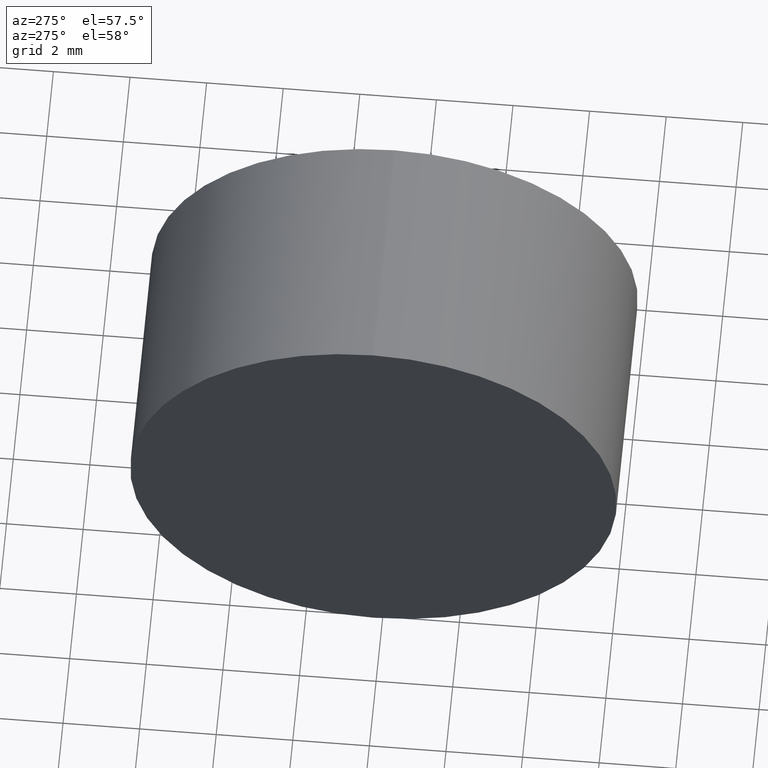
[diagram: clean part render]
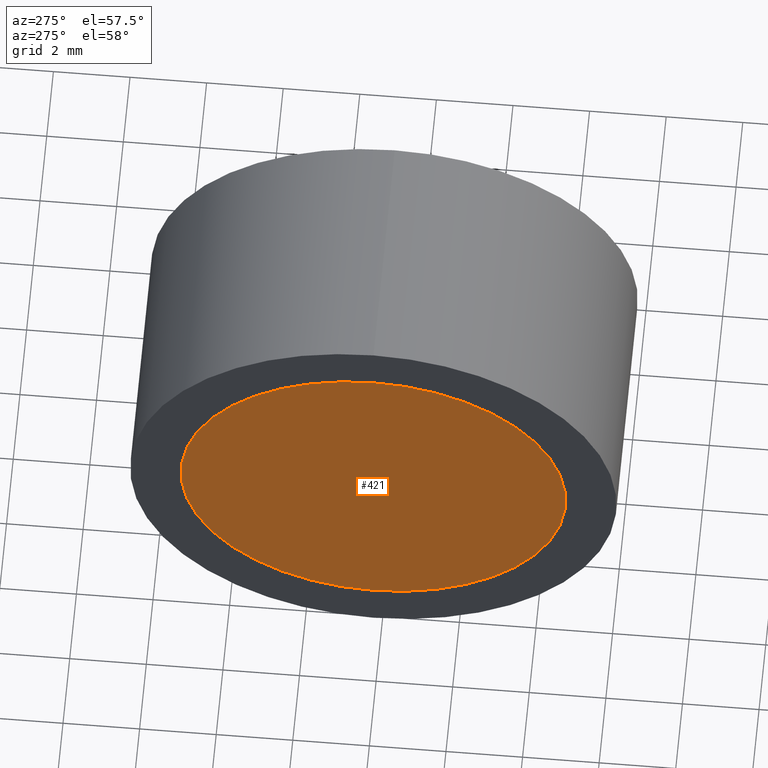
[diagram: same view with one face highlighted and labeled with its STEP entity id]
A machine part, auxiliary view. The second image highlights one B-rep face of the part: STEP entity #421.
In plain terms, the highlighted planar face has unit normal (1, 0, 0).
Its self-contained STEP definition (entity closure, byte-faithful):
#15 = CARTESIAN_POINT ( 'NONE',  ( 227.7645190849216300, 108.2256958952383700, 0.0000000000000000000 ) ) ;
#44 = DIRECTION ( 'NONE',  ( -1.000000000000000000, -0.0000000000000000000, -0.0000000000000000000 ) ) ;
#82 = PLANE ( 'NONE',  #134 ) ;
#101 = AXIS2_PLACEMENT_3D ( 'NONE', #15, #478, #475 ) ;
#104 = CARTESIAN_POINT ( 'NONE',  ( 227.7645190849216300, 108.2256958952383700, 0.0000000000000000000 ) ) ;
#134 = AXIS2_PLACEMENT_3D ( 'NONE', #331, #327, #530 ) ;
#158 = DIRECTION ( 'NONE',  ( 0.0000000000000000000, 0.0000000000000000000, 1.000000000000000000 ) ) ;
#169 = FACE_OUTER_BOUND ( 'NONE', #323, .T. ) ;
#182 = EDGE_CURVE ( 'NONE', #274, #259, #373, .T. ) ;
#201 = CARTESIAN_POINT ( 'NONE',  ( 227.7645190849216300, 108.2256958952383700, -5.025000000000002100 ) ) ;
#259 = VERTEX_POINT ( 'NONE', #201 ) ;
#264 = AXIS2_PLACEMENT_3D ( 'NONE', #104, #44, #158 ) ;
#274 = VERTEX_POINT ( 'NONE', #400 ) ;
#323 = EDGE_LOOP ( 'NONE', ( #408, #591 ) ) ;
#327 = DIRECTION ( 'NONE',  ( 1.000000000000000000, 0.0000000000000000000, 0.0000000000000000000 ) ) ;
#331 = CARTESIAN_POINT ( 'NONE',  ( 227.7645190849216300, 0.0000000000000000000, 0.0000000000000000000 ) ) ;
#363 = CIRCLE ( 'NONE', #101, 5.025000000000002100 ) ;
#373 = CIRCLE ( 'NONE', #264, 5.025000000000002100 ) ;
#400 = CARTESIAN_POINT ( 'NONE',  ( 227.7645190849216300, 108.2256958952383700, 5.025000000000002100 ) ) ;
#408 = ORIENTED_EDGE ( 'NONE', *, *, #182, .T. ) ;
#421 = ADVANCED_FACE ( 'NONE', ( #169 ), #82, .F. ) ;
#424 = EDGE_CURVE ( 'NONE', #259, #274, #363, .T. ) ;
#475 = DIRECTION ( 'NONE',  ( 0.0000000000000000000, 0.0000000000000000000, 1.000000000000000000 ) ) ;
#478 = DIRECTION ( 'NONE',  ( -1.000000000000000000, -0.0000000000000000000, -0.0000000000000000000 ) ) ;
#530 = DIRECTION ( 'NONE',  ( 0.0000000000000000000, 0.0000000000000000000, -1.000000000000000000 ) ) ;
#591 = ORIENTED_EDGE ( 'NONE', *, *, #424, .T. ) ;